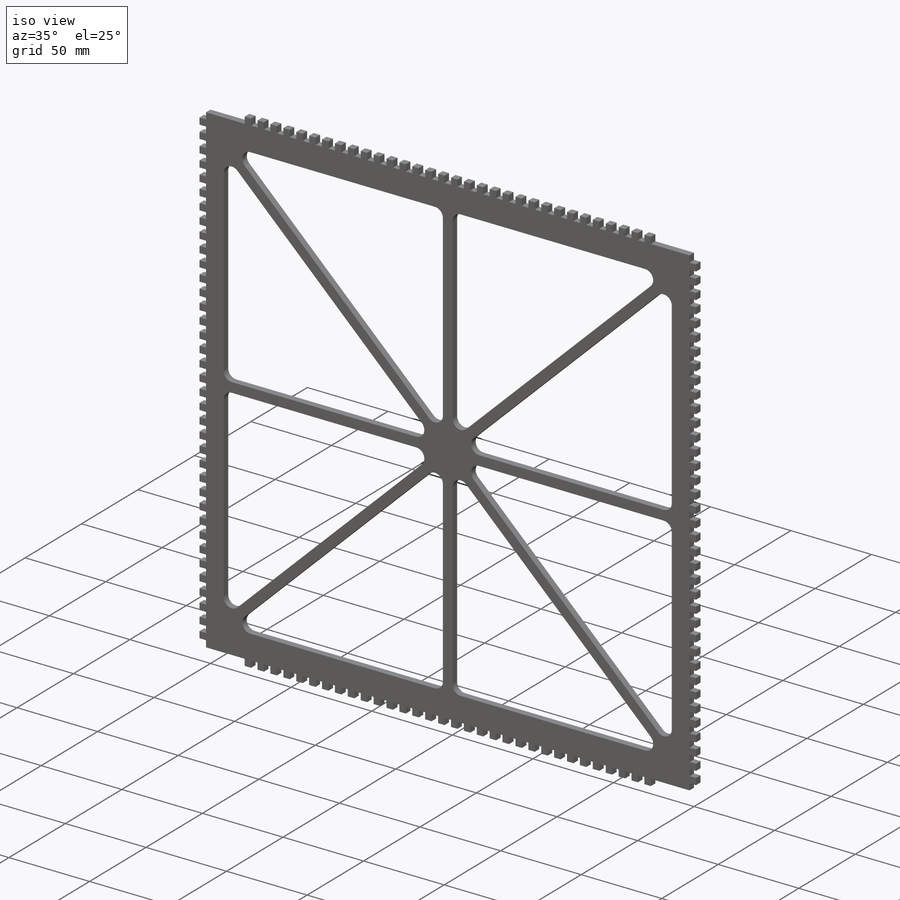
[diagram: iso view]
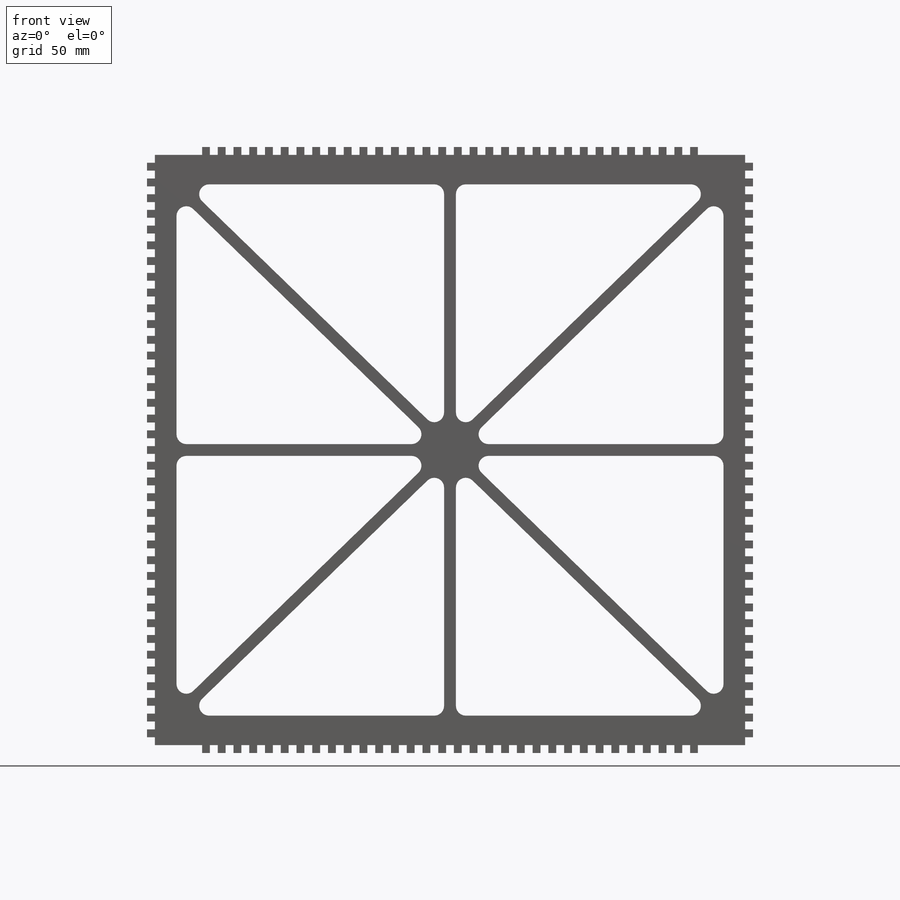
[diagram: front view]
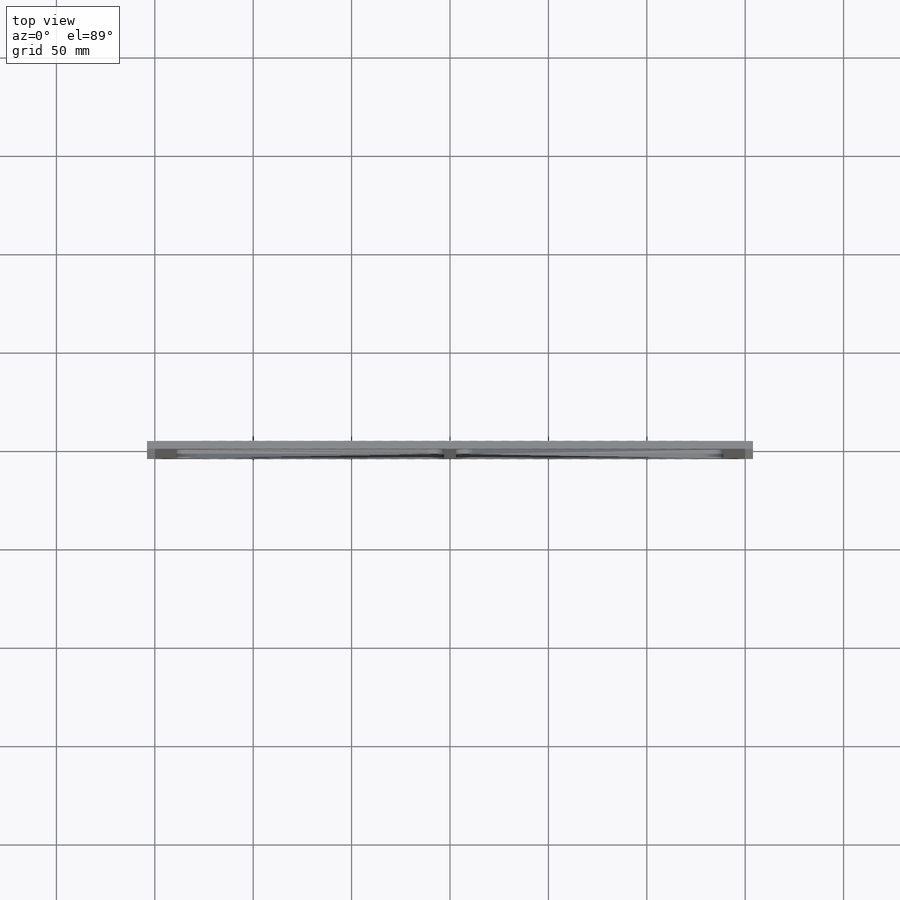
[diagram: top view]
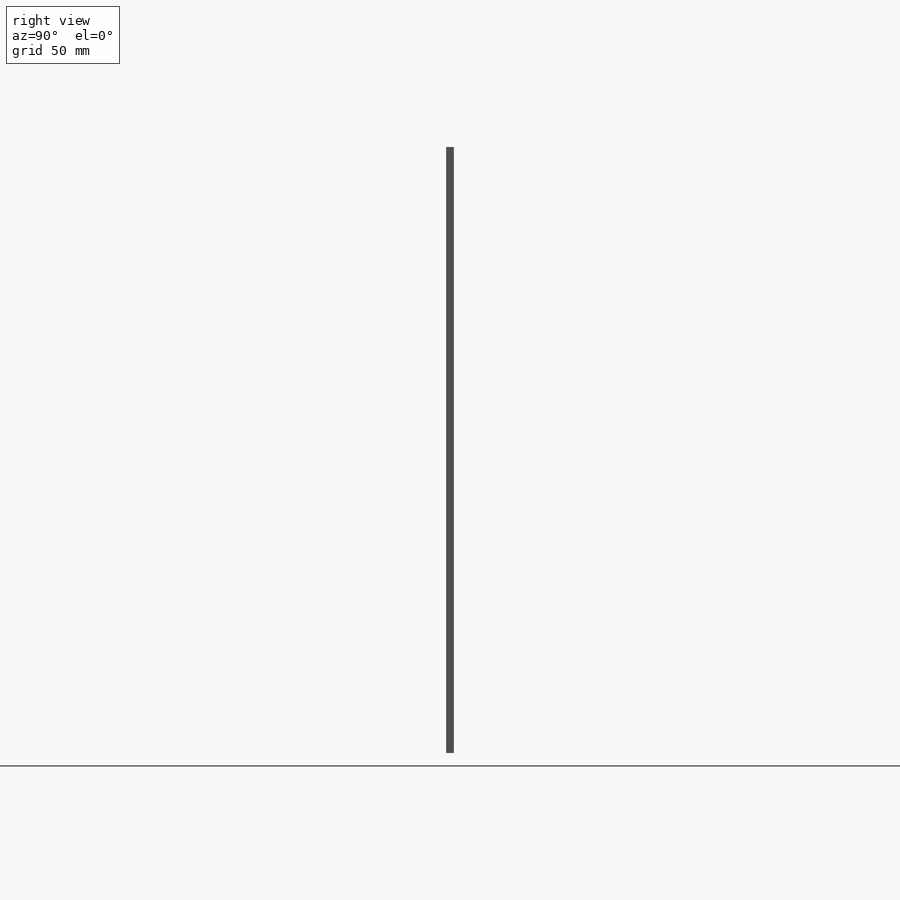
[diagram: right view]
SOLIDWORKS PART (.sldprt)
format: sldprt  version: not decoded by parser v0  size: 1,076,224 bytes
history: native  units: mm
features: sketch x3, extrude x2, material x1, cut_extrude x1 (+13 scaffold rows collapsed)
feature tree (20):
  scaffold x13  (default folders/planes/origin — collapsed)
  material  "Cedar"
  sketch  "Sketch1"  dims[c1.D3=7.0mm c1.D8=10.0mm c1.D7=10.0mm c1.D9=15.0mm c1.D10=12.0mm c1.D11=12.0mm c1.D12=5.0mm c1.D1=60.0mm c1.D2=50.0mm c1.D4=44.0mm c1.D5=30.0mm c2.D1=20.5mm c2.D2=20.0mm c2.D6=10.0mm c2.D7=10.0mm c2.D9=48.0mm c2.D5=15.0mm c3.D6=20.0mm c3.D7=30.0mm c3.D8=20.0mm c3.D9=50.5mm c3.D10=~99.834314mm c4.D8=100.0mm c4.D10=128.0mm c4.D2=308.0mm c4.D1=20.0mm c4.D4=15.0mm c5.D1=10.0mm c5.D4=20.0mm c5.D6=88.0mm c6.D4=43.0mm c6.D6=30.0mm c6.D7=10.0mm c6.D9=15.0mm c6.D8=150.0mm c6.D11=150.0mm c7.D9=5.0mm c7.D12=5.0mm c7.D5=45.0mm c8.D9=35.0mm c8.D12=50.0mm c8.D3=15.0mm c8.D4=15.0mm c8.D5=3.0mm c8.D6=3.0mm c8.D7=6.0mm c9.D9=6.0mm c9.D10=3.0mm c9.D12=3.0mm c9.D3=15.0mm c9.D13=15.0mm]
  extrude  "Boss-Extrude1"  Depth=4mm
  sketch  "Sketch2"  dims[c1.D1=2.0mm c1.D2=4.0mm c1.D3=4.0mm c1.D4=4.0mm c1.D5=6.0mm c1.D6=~89.269496mm c2.D1=2.0mm c2.D4=4.0mm c2.D6=4.0mm c2.D7=2.0mm c2.D8=2.0mm c2.D9=4.0mm c2.D10=6.0mm c3.D1=4.0mm c3.D2=4.0mm c3.D3=4.0mm c4.D1=4.0mm c4.D5=4.0mm c4.D4=37.0]
  cut_extrude  "Cut-Extrude1"  Depth=4mm
  sketch  "Sketch3"  dims[D1=2.0mm D2=4.0mm D3=4.0mm D4=16.0]
  extrude  "Boss-Extrude2"  Depth=4mm
decode coverage: 6 of 6 modeling features carry decoded parameters
note: ~ marks probable driven/reference dimensions
note: suppression state not decoded; provenance and decode notes live in map.json
